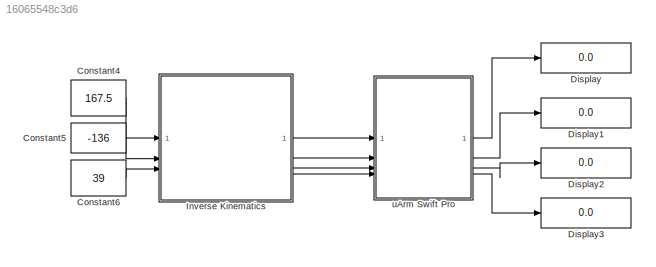
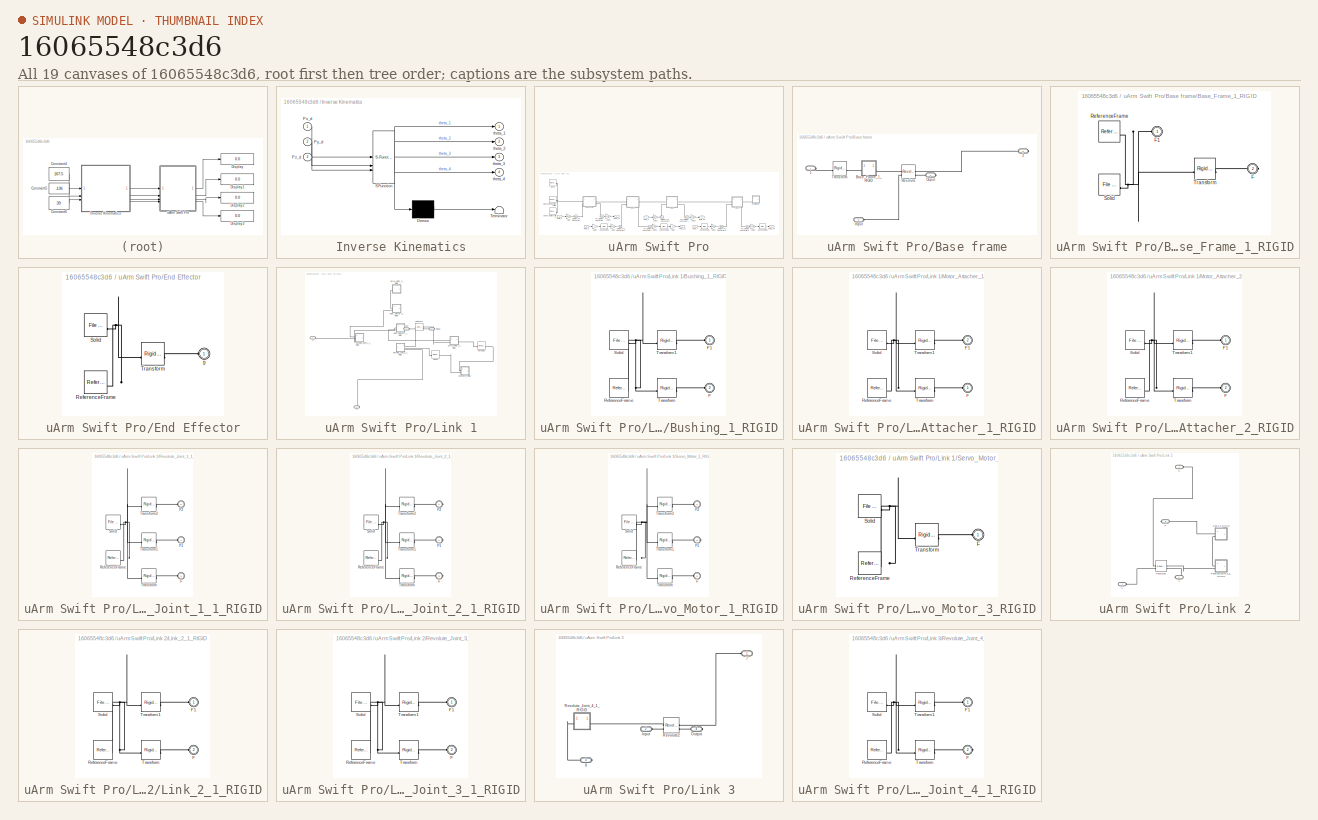
[diagram: thumbnail index - all 19 canvases of the model, root first then tree order]
MODEL slx_16065548c3d6
KIND model
CONFIG AbsTol = auto
CONFIG EnableMultiTasking = off
CONFIG FixedStep = auto
CONFIG MaxStep = auto
CONFIG MinStep = auto
CONFIG RelTol = 1e-3
CONFIG SampleTimeConstraint = Unconstrained
CONFIG SolverName = VariableStepAuto
CONFIG StartTime = 0.0
CONFIG StopTime = 10.0
WORKSPACE source: mxarray member
WORKSPACE smiData: object (value not decoded)
BLOCK [Constant] Constant4
  Value = 167.5
BLOCK [Constant] Constant5
  Value = -136
BLOCK [Constant] Constant6
  Value = 39
BLOCK [Display] Display
  Decimation = 1
BLOCK [Display] Display1
  Decimation = 1
BLOCK [Display] Display2
  Decimation = 1
BLOCK [Display] Display3
  Decimation = 1
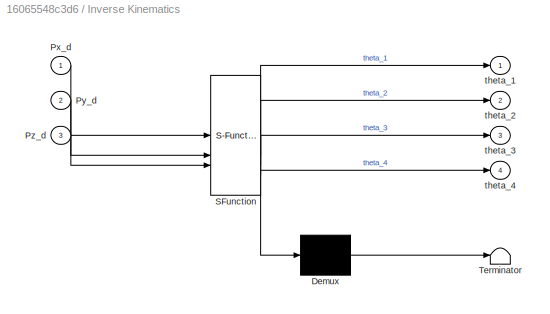
BLOCK [SubSystem] Inverse Kinematics
  ErrorFcn = Stateflow.Translate.translate
  LibrarySourceBlock = simulink/User-Defined\nFunctions/MATLAB Function
  PermitHierarchicalResolution = ExplicitOnly
  SFBlockType = MATLAB Function
  TreatAsAtomicUnit = on
BLOCK [Demux] Inverse Kinematics/ Demux 
  Outputs = 1
BLOCK [S-Function] Inverse Kinematics/ SFunction 
  EnableBusSupport = on
  FunctionName = sf_sfun
  PortCounts = [3 5]
  SFcnIsStateOwnerBlock = off
  SFunctionDeploymentMode = off
  Tag = Stateflow S-Function 1
BLOCK [Terminator] Inverse Kinematics/ Terminator 
BLOCK [Inport] Inverse Kinematics/Px_d
BLOCK [Inport] Inverse Kinematics/Py_d
  Port = 2
BLOCK [Inport] Inverse Kinematics/Pz_d
  Port = 3
BLOCK [Outport] Inverse Kinematics/theta_1
BLOCK [Outport] Inverse Kinematics/theta_2
  Port = 2
BLOCK [Outport] Inverse Kinematics/theta_3
  Port = 3
BLOCK [Outport] Inverse Kinematics/theta_4
  Port = 4
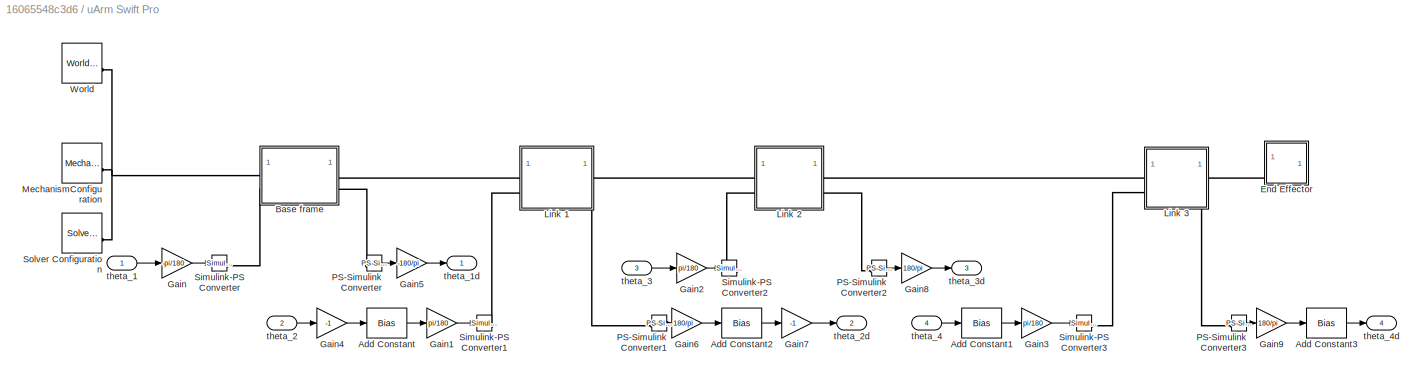
BLOCK [SubSystem] uArm Swift Pro
BLOCK [Bias] uArm Swift Pro/Add Constant
  Bias = 180
  SaturateOnIntegerOverflow = off
BLOCK [Bias] uArm Swift Pro/Add Constant1
  Bias = -90
  SaturateOnIntegerOverflow = off
BLOCK [Bias] uArm Swift Pro/Add Constant2
  Bias = -180
  SaturateOnIntegerOverflow = off
BLOCK [Bias] uArm Swift Pro/Add Constant3
  Bias = +90
  SaturateOnIntegerOverflow = off
BLOCK [SubSystem] uArm Swift Pro/Base frame
BLOCK [PMIOPort] uArm Swift Pro/Base frame/1
  Side = Left
BLOCK [PMIOPort] uArm Swift Pro/Base frame/2
  Port = 3
  Side = Right
BLOCK [SubSystem] uArm Swift Pro/Base frame/Base_Frame_1_RIGID
BLOCK [PMIOPort] uArm Swift Pro/Base frame/Base_Frame_1_RIGID/F
  Port = 2
  Side = Right
BLOCK [PMIOPort] uArm Swift Pro/Base frame/Base_Frame_1_RIGID/F1
  Side = Left
BLOCK [Reference] uArm Swift Pro/Base frame/Base_Frame_1_RIGID/ReferenceFrame  REF=sm_lib/Frames and
Transforms/Reference
Frame
  SourceBlock = sm_lib/Frames and\nTransforms/Reference\nFrame
  SourceType = Reference\nFrame
BLOCK [Reference] uArm Swift Pro/Base frame/Base_Frame_1_RIGID/Solid  REF=sm_lib/Body Elements/File Solid
  SourceBlock = sm_lib/Body Elements/File Solid
  SourceType = File Solid
BLOCK [Reference] uArm Swift Pro/Base frame/Base_Frame_1_RIGID/Transform  REF=sm_lib/Frames and
Transforms/Rigid
Transform
  SourceBlock = sm_lib/Frames and\nTransforms/Rigid\nTransform
  SourceType = Rigid\nTransform
BLOCK [PMIOPort] uArm Swift Pro/Base frame/Input
  Port = 2
  Side = Left
BLOCK [PMIOPort] uArm Swift Pro/Base frame/Ouput
  Port = 4
  Side = Right
BLOCK [Reference] uArm Swift Pro/Base frame/Revolute  REF=sm_lib/Joints/Revolute Joint
  SourceBlock = sm_lib/Joints/Revolute Joint
  SourceType = Revolute Joint
BLOCK [Reference] uArm Swift Pro/Base frame/Transform  REF=sm_lib/Frames and
Transforms/Rigid
Transform
  SourceBlock = sm_lib/Frames and\nTransforms/Rigid\nTransform
  SourceType = Rigid\nTransform
BLOCK [SubSystem] uArm Swift Pro/End Effector
BLOCK [PMIOPort] uArm Swift Pro/End Effector/9
  Side = Left
BLOCK [Reference] uArm Swift Pro/End Effector/ReferenceFrame  REF=sm_lib/Frames and
Transforms/Reference
Frame
  SourceBlock = sm_lib/Frames and\nTransforms/Reference\nFrame
  SourceType = Reference\nFrame
BLOCK [Reference] uArm Swift Pro/End Effector/Solid  REF=sm_lib/Body Elements/File Solid
  SourceBlock = sm_lib/Body Elements/File Solid
  SourceType = File Solid
BLOCK [Reference] uArm Swift Pro/End Effector/Transform  REF=sm_lib/Frames and
Transforms/Rigid
Transform
  SourceBlock = sm_lib/Frames and\nTransforms/Rigid\nTransform
  SourceType = Rigid\nTransform
BLOCK [Gain] uArm Swift Pro/Gain
  Gain = -pi/180
BLOCK [Gain] uArm Swift Pro/Gain1
  Gain = pi/180
BLOCK [Gain] uArm Swift Pro/Gain2
  Gain = pi/180
BLOCK [Gain] uArm Swift Pro/Gain3
  Gain = pi/180
BLOCK [Gain] uArm Swift Pro/Gain4
  Gain = -1
BLOCK [Gain] uArm Swift Pro/Gain5
  Gain = -180/pi
BLOCK [Gain] uArm Swift Pro/Gain6
  Gain = 180/pi
BLOCK [Gain] uArm Swift Pro/Gain7
  Gain = -1
BLOCK [Gain] uArm Swift Pro/Gain8
  Gain = 180/pi
BLOCK [Gain] uArm Swift Pro/Gain9
  Gain = 180/pi
BLOCK [SubSystem] uArm Swift Pro/Link 1
BLOCK [PMIOPort] uArm Swift Pro/Link 1/3
  Side = Left
BLOCK [PMIOPort] uArm Swift Pro/Link 1/4
  Port = 3
  Side = Right
BLOCK [SubSystem] uArm Swift Pro/Link 1/Bushing_1_RIGID
BLOCK [PMIOPort] uArm Swift Pro/Link 1/Bushing_1_RIGID/F
  Port = 2
  Side = Left
BLOCK [PMIOPort] uArm Swift Pro/Link 1/Bushing_1_RIGID/F1
  Side = Left
BLOCK [Reference] uArm Swift Pro/Link 1/Bushing_1_RIGID/ReferenceFrame  REF=sm_lib/Frames and
Transforms/Reference
Frame
  SourceBlock = sm_lib/Frames and\nTransforms/Reference\nFrame
  SourceType = Reference\nFrame
BLOCK [Reference] uArm Swift Pro/Link 1/Bushing_1_RIGID/Solid  REF=sm_lib/Body Elements/File Solid
  SourceBlock = sm_lib/Body Elements/File Solid
  SourceType = File Solid
BLOCK [Reference] uArm Swift Pro/Link 1/Bushing_1_RIGID/Transform  REF=sm_lib/Frames and
Transforms/Rigid
Transform
  SourceBlock = sm_lib/Frames and\nTransforms/Rigid\nTransform
  SourceType = Rigid\nTransform
BLOCK [Reference] uArm Swift Pro/Link 1/Bushing_1_RIGID/Transform1  REF=sm_lib/Frames and
Transforms/Rigid
Transform
  SourceBlock = sm_lib/Frames and\nTransforms/Rigid\nTransform
  SourceType = Rigid\nTransform
BLOCK [Reference] uArm Swift Pro/Link 1/Cylindrical  REF=sm_lib/Joints/Cylindrical
Joint
  SourceBlock = sm_lib/Joints/Cylindrical\nJoint
  SourceType = Cylindrical\nJoint
BLOCK [PMIOPort] uArm Swift Pro/Link 1/Input
  Port = 2
  Side = Left
BLOCK [SubSystem] uArm Swift Pro/Link 1/Motor_Attacher_1_RIGID
BLOCK [PMIOPort] uArm Swift Pro/Link 1/Motor_Attacher_1_RIGID/F
  Side = Left
BLOCK [PMIOPort] uArm Swift Pro/Link 1/Motor_Attacher_1_RIGID/F1
  Port = 2
  Side = Left
BLOCK [Reference] uArm Swift Pro/Link 1/Motor_Attacher_1_RIGID/ReferenceFrame  REF=sm_lib/Frames and
Transforms/Reference
Frame
  SourceBlock = sm_lib/Frames and\nTransforms/Reference\nFrame
  SourceType = Reference\nFrame
BLOCK [Reference] uArm Swift Pro/Link 1/Motor_Attacher_1_RIGID/Solid  REF=sm_lib/Body Elements/File Solid
  SourceBlock = sm_lib/Body Elements/File Solid
  SourceType = File Solid
BLOCK [Reference] uArm Swift Pro/Link 1/Motor_Attacher_1_RIGID/Transform  REF=sm_lib/Frames and
Transforms/Rigid
Transform
  SourceBlock = sm_lib/Frames and\nTransforms/Rigid\nTransform
  SourceType = Rigid\nTransform
BLOCK [Reference] uArm Swift Pro/Link 1/Motor_Attacher_1_RIGID/Transform1  REF=sm_lib/Frames and
Transforms/Rigid
Transform
  SourceBlock = sm_lib/Frames and\nTransforms/Rigid\nTransform
  SourceType = Rigid\nTransform
BLOCK [SubSystem] uArm Swift Pro/Link 1/Motor_Attacher_2_RIGID
BLOCK [PMIOPort] uArm Swift Pro/Link 1/Motor_Attacher_2_RIGID/F
  Port = 2
  Side = Left
BLOCK [PMIOPort] uArm Swift Pro/Link 1/Motor_Attacher_2_RIGID/F1
  Side = Left
BLOCK [Reference] uArm Swift Pro/Link 1/Motor_Attacher_2_RIGID/ReferenceFrame  REF=sm_lib/Frames and
Transforms/Reference
Frame
  SourceBlock = sm_lib/Frames and\nTransforms/Reference\nFrame
  SourceType = Reference\nFrame
BLOCK [Reference] uArm Swift Pro/Link 1/Motor_Attacher_2_RIGID/Solid  REF=sm_lib/Body Elements/File Solid
  SourceBlock = sm_lib/Body Elements/File Solid
  SourceType = File Solid
BLOCK [Reference] uArm Swift Pro/Link 1/Motor_Attacher_2_RIGID/Transform  REF=sm_lib/Frames and
Transforms/Rigid
Transform
  SourceBlock = sm_lib/Frames and\nTransforms/Rigid\nTransform
  SourceType = Rigid\nTransform
BLOCK [Reference] uArm Swift Pro/Link 1/Motor_Attacher_2_RIGID/Transform1  REF=sm_lib/Frames and
Transforms/Rigid
Transform
  SourceBlock = sm_lib/Frames and\nTransforms/Rigid\nTransform
  SourceType = Rigid\nTransform
BLOCK [PMIOPort] uArm Swift Pro/Link 1/Output
  Port = 4
  Side = Right
BLOCK [Reference] uArm Swift Pro/Link 1/Planar  REF=sm_lib/Joints/Planar Joint
  SourceBlock = sm_lib/Joints/Planar Joint
  SourceType = Planar Joint
BLOCK [Reference] uArm Swift Pro/Link 1/Revolute3  REF=sm_lib/Joints/Revolute Joint
  SourceBlock = sm_lib/Joints/Revolute Joint
  SourceType = Revolute Joint
BLOCK [SubSystem] uArm Swift Pro/Link 1/Revolute_Joint_1_1_RIGID
BLOCK [PMIOPort] uArm Swift Pro/Link 1/Revolute_Joint_1_1_RIGID/F
  Port = 3
  Side = Left
BLOCK [PMIOPort] uArm Swift Pro/Link 1/Revolute_Joint_1_1_RIGID/F1
  Side = Left
BLOCK [PMIOPort] uArm Swift Pro/Link 1/Revolute_Joint_1_1_RIGID/F2
  Port = 2
  Side = Left
BLOCK [Reference] uArm Swift Pro/Link 1/Revolute_Joint_1_1_RIGID/ReferenceFrame  REF=sm_lib/Frames and
Transforms/Reference
Frame
  SourceBlock = sm_lib/Frames and\nTransforms/Reference\nFrame
  SourceType = Reference\nFrame
BLOCK [Reference] uArm Swift Pro/Link 1/Revolute_Joint_1_1_RIGID/Solid  REF=sm_lib/Body Elements/File Solid
  SourceBlock = sm_lib/Body Elements/File Solid
  SourceType = File Solid
BLOCK [Reference] uArm Swift Pro/Link 1/Revolute_Joint_1_1_RIGID/Transform  REF=sm_lib/Frames and
Transforms/Rigid
Transform
  SourceBlock = sm_lib/Frames and\nTransforms/Rigid\nTransform
  SourceType = Rigid\nTransform
BLOCK [Reference] uArm Swift Pro/Link 1/Revolute_Joint_1_1_RIGID/Transform1  REF=sm_lib/Frames and
Transforms/Rigid
Transform
  SourceBlock = sm_lib/Frames and\nTransforms/Rigid\nTransform
  SourceType = Rigid\nTransform
BLOCK [Reference] uArm Swift Pro/Link 1/Revolute_Joint_1_1_RIGID/Transform2  REF=sm_lib/Frames and
Transforms/Rigid
Transform
  SourceBlock = sm_lib/Frames and\nTransforms/Rigid\nTransform
  SourceType = Rigid\nTransform
BLOCK [SubSystem] uArm Swift Pro/Link 1/Revolute_Joint_2_1_RIGID
BLOCK [PMIOPort] uArm Swift Pro/Link 1/Revolute_Joint_2_1_RIGID/F
  Port = 3
  Side = Right
BLOCK [PMIOPort] uArm Swift Pro/Link 1/Revolute_Joint_2_1_RIGID/F1
  Port = 2
  Side = Right
BLOCK [PMIOPort] uArm Swift Pro/Link 1/Revolute_Joint_2_1_RIGID/F2
  Side = Right
BLOCK [Reference] uArm Swift Pro/Link 1/Revolute_Joint_2_1_RIGID/ReferenceFrame  REF=sm_lib/Frames and
Transforms/Reference
Frame
  SourceBlock = sm_lib/Frames and\nTransforms/Reference\nFrame
  SourceType = Reference\nFrame
BLOCK [Reference] uArm Swift Pro/Link 1/Revolute_Joint_2_1_RIGID/Solid  REF=sm_lib/Body Elements/File Solid
  SourceBlock = sm_lib/Body Elements/File Solid
  SourceType = File Solid
BLOCK [Reference] uArm Swift Pro/Link 1/Revolute_Joint_2_1_RIGID/Transform  REF=sm_lib/Frames and
Transforms/Rigid
Transform
  SourceBlock = sm_lib/Frames and\nTransforms/Rigid\nTransform
  SourceType = Rigid\nTransform
BLOCK [Reference] uArm Swift Pro/Link 1/Revolute_Joint_2_1_RIGID/Transform1  REF=sm_lib/Frames and
Transforms/Rigid
Transform
  SourceBlock = sm_lib/Frames and\nTransforms/Rigid\nTransform
  SourceType = Rigid\nTransform
BLOCK [Reference] uArm Swift Pro/Link 1/Revolute_Joint_2_1_RIGID/Transform2  REF=sm_lib/Frames and
Transforms/Rigid
Transform
  SourceBlock = sm_lib/Frames and\nTransforms/Rigid\nTransform
  SourceType = Rigid\nTransform
BLOCK [SubSystem] uArm Swift Pro/Link 1/Servo_Motor_1_RIGID
BLOCK [PMIOPort] uArm Swift Pro/Link 1/Servo_Motor_1_RIGID/F
  Port = 2
  Side = Left
BLOCK [PMIOPort] uArm Swift Pro/Link 1/Servo_Motor_1_RIGID/F1
  Port = 3
  Side = Right
BLOCK [PMIOPort] uArm Swift Pro/Link 1/Servo_Motor_1_RIGID/F2
  Side = Left
BLOCK [Reference] uArm Swift Pro/Link 1/Servo_Motor_1_RIGID/ReferenceFrame  REF=sm_lib/Frames and
Transforms/Reference
Frame
  SourceBlock = sm_lib/Frames and\nTransforms/Reference\nFrame
  SourceType = Reference\nFrame
BLOCK [Reference] uArm Swift Pro/Link 1/Servo_Motor_1_RIGID/Solid  REF=sm_lib/Body Elements/File Solid
  SourceBlock = sm_lib/Body Elements/File Solid
  SourceType = File Solid
BLOCK [Reference] uArm Swift Pro/Link 1/Servo_Motor_1_RIGID/Transform  REF=sm_lib/Frames and
Transforms/Rigid
Transform
  SourceBlock = sm_lib/Frames and\nTransforms/Rigid\nTransform
  SourceType = Rigid\nTransform
BLOCK [Reference] uArm Swift Pro/Link 1/Servo_Motor_1_RIGID/Transform1  REF=sm_lib/Frames and
Transforms/Rigid
Transform
  SourceBlock = sm_lib/Frames and\nTransforms/Rigid\nTransform
  SourceType = Rigid\nTransform
BLOCK [Reference] uArm Swift Pro/Link 1/Servo_Motor_1_RIGID/Transform2  REF=sm_lib/Frames and
Transforms/Rigid
Transform
  SourceBlock = sm_lib/Frames and\nTransforms/Rigid\nTransform
  SourceType = Rigid\nTransform
BLOCK [SubSystem] uArm Swift Pro/Link 1/Servo_Motor_3_RIGID
BLOCK [PMIOPort] uArm Swift Pro/Link 1/Servo_Motor_3_RIGID/F
  Side = Left
BLOCK [Reference] uArm Swift Pro/Link 1/Servo_Motor_3_RIGID/ReferenceFrame  REF=sm_lib/Frames and
Transforms/Reference
Frame
  SourceBlock = sm_lib/Frames and\nTransforms/Reference\nFrame
  SourceType = Reference\nFrame
BLOCK [Reference] uArm Swift Pro/Link 1/Servo_Motor_3_RIGID/Solid  REF=sm_lib/Body Elements/File Solid
  SourceBlock = sm_lib/Body Elements/File Solid
  SourceType = File Solid
BLOCK [Reference] uArm Swift Pro/Link 1/Servo_Motor_3_RIGID/Transform  REF=sm_lib/Frames and
Transforms/Rigid
Transform
  SourceBlock = sm_lib/Frames and\nTransforms/Rigid\nTransform
  SourceType = Rigid\nTransform
BLOCK [SubSystem] uArm Swift Pro/Link 2
BLOCK [PMIOPort] uArm Swift Pro/Link 2/1
  Port = 2
  Side = Left
BLOCK [PMIOPort] uArm Swift Pro/Link 2/2
  Port = 4
  Side = Right
BLOCK [PMIOPort] uArm Swift Pro/Link 2/5
  Side = Left
BLOCK [PMIOPort] uArm Swift Pro/Link 2/6
  Port = 3
  Side = Right
BLOCK [SubSystem] uArm Swift Pro/Link 2/Link_2_1_RIGID
BLOCK [PMIOPort] uArm Swift Pro/Link 2/Link_2_1_RIGID/F
  Port = 2
  Side = Left
BLOCK [PMIOPort] uArm Swift Pro/Link 2/Link_2_1_RIGID/F1
  Side = Left
BLOCK [Reference] uArm Swift Pro/Link 2/Link_2_1_RIGID/ReferenceFrame  REF=sm_lib/Frames and
Transforms/Reference
Frame
  SourceBlock = sm_lib/Frames and\nTransforms/Reference\nFrame
  SourceType = Reference\nFrame
BLOCK [Reference] uArm Swift Pro/Link 2/Link_2_1_RIGID/Solid  REF=sm_lib/Body Elements/File Solid
  SourceBlock = sm_lib/Body Elements/File Solid
  SourceType = File Solid
BLOCK [Reference] uArm Swift Pro/Link 2/Link_2_1_RIGID/Transform  REF=sm_lib/Frames and
Transforms/Rigid
Transform
  SourceBlock = sm_lib/Frames and\nTransforms/Rigid\nTransform
  SourceType = Rigid\nTransform
BLOCK [Reference] uArm Swift Pro/Link 2/Link_2_1_RIGID/Transform1  REF=sm_lib/Frames and
Transforms/Rigid
Transform
  SourceBlock = sm_lib/Frames and\nTransforms/Rigid\nTransform
  SourceType = Rigid\nTransform
BLOCK [Reference] uArm Swift Pro/Link 2/Revolute1  REF=sm_lib/Joints/Revolute Joint
  SourceBlock = sm_lib/Joints/Revolute Joint
  SourceType = Revolute Joint
BLOCK [SubSystem] uArm Swift Pro/Link 2/Revolute_Joint_3_1_RIGID
BLOCK [PMIOPort] uArm Swift Pro/Link 2/Revolute_Joint_3_1_RIGID/F
  Port = 2
  Side = Left
BLOCK [PMIOPort] uArm Swift Pro/Link 2/Revolute_Joint_3_1_RIGID/F1
  Side = Left
BLOCK [Reference] uArm Swift Pro/Link 2/Revolute_Joint_3_1_RIGID/ReferenceFrame  REF=sm_lib/Frames and
Transforms/Reference
Frame
  SourceBlock = sm_lib/Frames and\nTransforms/Reference\nFrame
  SourceType = Reference\nFrame
BLOCK [Reference] uArm Swift Pro/Link 2/Revolute_Joint_3_1_RIGID/Solid  REF=sm_lib/Body Elements/File Solid
  SourceBlock = sm_lib/Body Elements/File Solid
  SourceType = File Solid
BLOCK [Reference] uArm Swift Pro/Link 2/Revolute_Joint_3_1_RIGID/Transform  REF=sm_lib/Frames and
Transforms/Rigid
Transform
  SourceBlock = sm_lib/Frames and\nTransforms/Rigid\nTransform
  SourceType = Rigid\nTransform
BLOCK [Reference] uArm Swift Pro/Link 2/Revolute_Joint_3_1_RIGID/Transform1  REF=sm_lib/Frames and
Transforms/Rigid
Transform
  SourceBlock = sm_lib/Frames and\nTransforms/Rigid\nTransform
  SourceType = Rigid\nTransform
BLOCK [SubSystem] uArm Swift Pro/Link 3
BLOCK [PMIOPort] uArm Swift Pro/Link 3/7
  Side = Left
BLOCK [PMIOPort] uArm Swift Pro/Link 3/8
  Port = 3
  Side = Right
BLOCK [PMIOPort] uArm Swift Pro/Link 3/Input
  Port = 2
  Side = Left
BLOCK [PMIOPort] uArm Swift Pro/Link 3/Output
  Port = 4
  Side = Right
BLOCK [Reference] uArm Swift Pro/Link 3/Revolute2  REF=sm_lib/Joints/Revolute Joint
  SourceBlock = sm_lib/Joints/Revolute Joint
  SourceType = Revolute Joint
BLOCK [SubSystem] uArm Swift Pro/Link 3/Revolute_Joint_4_1_RIGID
BLOCK [PMIOPort] uArm Swift Pro/Link 3/Revolute_Joint_4_1_RIGID/F
  Port = 2
  Side = Right
BLOCK [PMIOPort] uArm Swift Pro/Link 3/Revolute_Joint_4_1_RIGID/F1
  Side = Left
BLOCK [Reference] uArm Swift Pro/Link 3/Revolute_Joint_4_1_RIGID/ReferenceFrame  REF=sm_lib/Frames and
Transforms/Reference
Frame
  SourceBlock = sm_lib/Frames and\nTransforms/Reference\nFrame
  SourceType = Reference\nFrame
BLOCK [Reference] uArm Swift Pro/Link 3/Revolute_Joint_4_1_RIGID/Solid  REF=sm_lib/Body Elements/File Solid
  SourceBlock = sm_lib/Body Elements/File Solid
  SourceType = File Solid
BLOCK [Reference] uArm Swift Pro/Link 3/Revolute_Joint_4_1_RIGID/Transform  REF=sm_lib/Frames and
Transforms/Rigid
Transform
  SourceBlock = sm_lib/Frames and\nTransforms/Rigid\nTransform
  SourceType = Rigid\nTransform
BLOCK [Reference] uArm Swift Pro/Link 3/Revolute_Joint_4_1_RIGID/Transform1  REF=sm_lib/Frames and
Transforms/Rigid
Transform
  SourceBlock = sm_lib/Frames and\nTransforms/Rigid\nTransform
  SourceType = Rigid\nTransform
BLOCK [Reference] uArm Swift Pro/MechanismConfiguration  REF=sm_lib/Utilities/Mechanism
Configuration
  SourceBlock = sm_lib/Utilities/Mechanism\nConfiguration
  SourceType = Mechanism\nConfiguration
BLOCK [Reference] uArm Swift Pro/PS-Simulink Converter  REF=nesl_utility/PS-Simulink
Converter
  SourceBlock = nesl_utility/PS-Simulink\nConverter
  SourceType = PS-Simulink\nConverter
BLOCK [Reference] uArm Swift Pro/PS-Simulink Converter1  REF=nesl_utility/PS-Simulink
Converter
  SourceBlock = nesl_utility/PS-Simulink\nConverter
  SourceType = PS-Simulink\nConverter
BLOCK [Reference] uArm Swift Pro/PS-Simulink Converter2  REF=nesl_utility/PS-Simulink
Converter
  SourceBlock = nesl_utility/PS-Simulink\nConverter
  SourceType = PS-Simulink\nConverter
BLOCK [Reference] uArm Swift Pro/PS-Simulink Converter3  REF=nesl_utility/PS-Simulink
Converter
  SourceBlock = nesl_utility/PS-Simulink\nConverter
  SourceType = PS-Simulink\nConverter
BLOCK [Reference] uArm Swift Pro/Simulink-PS Converter  REF=nesl_utility/Simulink-PS
Converter
  SourceBlock = nesl_utility/Simulink-PS\nConverter
  SourceType = Simulink-PS\nConverter
BLOCK [Reference] uArm Swift Pro/Simulink-PS Converter1  REF=nesl_utility/Simulink-PS
Converter
  SourceBlock = nesl_utility/Simulink-PS\nConverter
  SourceType = Simulink-PS\nConverter
BLOCK [Reference] uArm Swift Pro/Simulink-PS Converter2  REF=nesl_utility/Simulink-PS
Converter
  SourceBlock = nesl_utility/Simulink-PS\nConverter
  SourceType = Simulink-PS\nConverter
BLOCK [Reference] uArm Swift Pro/Simulink-PS Converter3  REF=nesl_utility/Simulink-PS
Converter
  SourceBlock = nesl_utility/Simulink-PS\nConverter
  SourceType = Simulink-PS\nConverter
BLOCK [Reference] uArm Swift Pro/Solver Configuration  REF=nesl_utility/Solver
Configuration
  SourceBlock = nesl_utility/Solver\nConfiguration
  SourceType = Solver\nConfiguration
BLOCK [Reference] uArm Swift Pro/World  REF=sm_lib/Frames and
Transforms/World Frame
  SourceBlock = sm_lib/Frames and\nTransforms/World Frame
  SourceType = World Frame
BLOCK [Inport] uArm Swift Pro/theta_1
BLOCK [Outport] uArm Swift Pro/theta_1d
BLOCK [Inport] uArm Swift Pro/theta_2
  Port = 2
BLOCK [Outport] uArm Swift Pro/theta_2d
  Port = 2
BLOCK [Inport] uArm Swift Pro/theta_3
  Port = 3
BLOCK [Outport] uArm Swift Pro/theta_3d
  Port = 3
BLOCK [Inport] uArm Swift Pro/theta_4
  Port = 4
BLOCK [Outport] uArm Swift Pro/theta_4d
  Port = 4
LINE Constant4:1 -> Inverse Kinematics:1
LINE Constant5:1 -> Inverse Kinematics:2
LINE Constant6:1 -> Inverse Kinematics:3
LINE Inverse Kinematics:1 -> uArm Swift Pro:1
LINE Inverse Kinematics:2 -> uArm Swift Pro:2
LINE Inverse Kinematics:3 -> uArm Swift Pro:3
LINE Inverse Kinematics:4 -> uArm Swift Pro:4
LINE uArm Swift Pro/Add Constant1:1 -> uArm Swift Pro/Gain3:1
LINE uArm Swift Pro/Add Constant2:1 -> uArm Swift Pro/Gain7:1
LINE uArm Swift Pro/Add Constant3:1 -> uArm Swift Pro/theta_4d:1
LINE uArm Swift Pro/Add Constant:1 -> uArm Swift Pro/Gain1:1
LINE uArm Swift Pro/Gain1:1 -> uArm Swift Pro/Simulink-PS Converter1:1
LINE uArm Swift Pro/Gain2:1 -> uArm Swift Pro/Simulink-PS Converter2:1
LINE uArm Swift Pro/Gain3:1 -> uArm Swift Pro/Simulink-PS Converter3:1
LINE uArm Swift Pro/Gain4:1 -> uArm Swift Pro/Add Constant:1
LINE uArm Swift Pro/Gain5:1 -> uArm Swift Pro/theta_1d:1
LINE uArm Swift Pro/Gain6:1 -> uArm Swift Pro/Add Constant2:1
LINE uArm Swift Pro/Gain7:1 -> uArm Swift Pro/theta_2d:1
LINE uArm Swift Pro/Gain8:1 -> uArm Swift Pro/theta_3d:1
LINE uArm Swift Pro/Gain9:1 -> uArm Swift Pro/Add Constant3:1
LINE uArm Swift Pro/Gain:1 -> uArm Swift Pro/Simulink-PS Converter:1
LINE uArm Swift Pro/PS-Simulink Converter1:1 -> uArm Swift Pro/Gain6:1
LINE uArm Swift Pro/PS-Simulink Converter2:1 -> uArm Swift Pro/Gain8:1
LINE uArm Swift Pro/PS-Simulink Converter3:1 -> uArm Swift Pro/Gain9:1
LINE uArm Swift Pro/PS-Simulink Converter:1 -> uArm Swift Pro/Gain5:1
LINE uArm Swift Pro/theta_1:1 -> uArm Swift Pro/Gain:1
LINE uArm Swift Pro/theta_2:1 -> uArm Swift Pro/Gain4:1
LINE uArm Swift Pro/theta_3:1 -> uArm Swift Pro/Gain2:1
LINE uArm Swift Pro/theta_4:1 -> uArm Swift Pro/Add Constant1:1
LINE uArm Swift Pro:1 -> Display:1
LINE uArm Swift Pro:2 -> Display1:1
LINE uArm Swift Pro:3 -> Display2:1
LINE uArm Swift Pro:4 -> Display3:1
PLINE uArm Swift Pro/Base frame/1:RConn1 -- uArm Swift Pro/Base frame/Transform:LConn1
PLINE uArm Swift Pro/Base frame/2:RConn1 -- uArm Swift Pro/Base frame/Revolute:RConn1
PNET net1: uArm Swift Pro/Base frame/Base_Frame_1_RIGID/F1:RConn1 -- uArm Swift Pro/Base frame/Base_Frame_1_RIGID/ReferenceFrame:RConn1 -- uArm Swift Pro/Base frame/Base_Frame_1_RIGID/Solid:RConn1 -- uArm Swift Pro/Base frame/Base_Frame_1_RIGID/Transform:LConn1
PLINE uArm Swift Pro/Base frame/Base_Frame_1_RIGID/F:RConn1 -- uArm Swift Pro/Base frame/Base_Frame_1_RIGID/Transform:RConn1
PLINE uArm Swift Pro/Base frame/Base_Frame_1_RIGID:LConn1 -- uArm Swift Pro/Base frame/Transform:RConn1
PLINE uArm Swift Pro/Base frame/Base_Frame_1_RIGID:RConn1 -- uArm Swift Pro/Base frame/Revolute:LConn1
PLINE uArm Swift Pro/Base frame/Input:RConn1 -- uArm Swift Pro/Base frame/Revolute:LConn2
PLINE uArm Swift Pro/Base frame/Ouput:RConn1 -- uArm Swift Pro/Base frame/Revolute:RConn2
PNET net2: uArm Swift Pro/Base frame:LConn1 -- uArm Swift Pro/MechanismConfiguration:RConn1 -- uArm Swift Pro/Solver Configuration:RConn1 -- uArm Swift Pro/World:RConn1
PLINE uArm Swift Pro/Base frame:LConn2 -- uArm Swift Pro/Simulink-PS Converter:RConn1
PLINE uArm Swift Pro/Base frame:RConn1 -- uArm Swift Pro/Link 1:LConn1
PLINE uArm Swift Pro/Base frame:RConn2 -- uArm Swift Pro/PS-Simulink Converter:LConn1
PLINE uArm Swift Pro/End Effector/9:RConn1 -- uArm Swift Pro/End Effector/Transform:RConn1
PNET net3: uArm Swift Pro/End Effector/ReferenceFrame:RConn1 -- uArm Swift Pro/End Effector/Solid:RConn1 -- uArm Swift Pro/End Effector/Transform:LConn1
PLINE uArm Swift Pro/End Effector:LConn1 -- uArm Swift Pro/Link 3:RConn1
PLINE uArm Swift Pro/Link 1/3:RConn1 -- uArm Swift Pro/Link 1/Revolute_Joint_1_1_RIGID:LConn2
PLINE uArm Swift Pro/Link 1/4:RConn1 -- uArm Swift Pro/Link 1/Revolute_Joint_2_1_RIGID:RConn3
PLINE uArm Swift Pro/Link 1/Bushing_1_RIGID/F1:RConn1 -- uArm Swift Pro/Link 1/Bushing_1_RIGID/Transform1:RConn1
PLINE uArm Swift Pro/Link 1/Bushing_1_RIGID/F:RConn1 -- uArm Swift Pro/Link 1/Bushing_1_RIGID/Transform:RConn1
PNET net4: uArm Swift Pro/Link 1/Bushing_1_RIGID/ReferenceFrame:RConn1 -- uArm Swift Pro/Link 1/Bushing_1_RIGID/Solid:RConn1 -- uArm Swift Pro/Link 1/Bushing_1_RIGID/Transform1:LConn1 -- uArm Swift Pro/Link 1/Bushing_1_RIGID/Transform:LConn1
PLINE uArm Swift Pro/Link 1/Bushing_1_RIGID:LConn1 -- uArm Swift Pro/Link 1/Revolute3:RConn1
PLINE uArm Swift Pro/Link 1/Bushing_1_RIGID:LConn2 -- uArm Swift Pro/Link 1/Planar:RConn1
PLINE uArm Swift Pro/Link 1/Cylindrical:LConn1 -- uArm Swift Pro/Link 1/Revolute_Joint_2_1_RIGID:RConn1
PLINE uArm Swift Pro/Link 1/Cylindrical:LConn2 -- uArm Swift Pro/Link 1/Input:RConn1
PLINE uArm Swift Pro/Link 1/Cylindrical:RConn1 -- uArm Swift Pro/Link 1/Servo_Motor_1_RIGID:LConn2
PLINE uArm Swift Pro/Link 1/Cylindrical:RConn2 -- uArm Swift Pro/Link 1/Output:RConn1
PLINE uArm Swift Pro/Link 1/Motor_Attacher_1_RIGID/F1:RConn1 -- uArm Swift Pro/Link 1/Motor_Attacher_1_RIGID/Transform1:RConn1
PLINE uArm Swift Pro/Link 1/Motor_Attacher_1_RIGID/F:RConn1 -- uArm Swift Pro/Link 1/Motor_Attacher_1_RIGID/Transform:RConn1
PNET net5: uArm Swift Pro/Link 1/Motor_Attacher_1_RIGID/ReferenceFrame:RConn1 -- uArm Swift Pro/Link 1/Motor_Attacher_1_RIGID/Solid:RConn1 -- uArm Swift Pro/Link 1/Motor_Attacher_1_RIGID/Transform1:LConn1 -- uArm Swift Pro/Link 1/Motor_Attacher_1_RIGID/Transform:LConn1
PLINE uArm Swift Pro/Link 1/Motor_Attacher_1_RIGID:LConn1 -- uArm Swift Pro/Link 1/Revolute_Joint_1_1_RIGID:LConn3
PLINE uArm Swift Pro/Link 1/Motor_Attacher_1_RIGID:LConn2 -- uArm Swift Pro/Link 1/Servo_Motor_1_RIGID:LConn1
PLINE uArm Swift Pro/Link 1/Motor_Attacher_2_RIGID/F1:RConn1 -- uArm Swift Pro/Link 1/Motor_Attacher_2_RIGID/Transform1:RConn1
PLINE uArm Swift Pro/Link 1/Motor_Attacher_2_RIGID/F:RConn1 -- uArm Swift Pro/Link 1/Motor_Attacher_2_RIGID/Transform:RConn1
PNET net6: uArm Swift Pro/Link 1/Motor_Attacher_2_RIGID/ReferenceFrame:RConn1 -- uArm Swift Pro/Link 1/Motor_Attacher_2_RIGID/Solid:RConn1 -- uArm Swift Pro/Link 1/Motor_Attacher_2_RIGID/Transform1:LConn1 -- uArm Swift Pro/Link 1/Motor_Attacher_2_RIGID/Transform:LConn1
PLINE uArm Swift Pro/Link 1/Motor_Attacher_2_RIGID:LConn1 -- uArm Swift Pro/Link 1/Servo_Motor_3_RIGID:LConn1
PLINE uArm Swift Pro/Link 1/Motor_Attacher_2_RIGID:LConn2 -- uArm Swift Pro/Link 1/Revolute_Joint_1_1_RIGID:LConn1
PLINE uArm Swift Pro/Link 1/Planar:LConn1 -- uArm Swift Pro/Link 1/Revolute_Joint_2_1_RIGID:RConn2
PLINE uArm Swift Pro/Link 1/Revolute3:LConn1 -- uArm Swift Pro/Link 1/Servo_Motor_1_RIGID:RConn1
PLINE uArm Swift Pro/Link 1/Revolute_Joint_1_1_RIGID/F1:RConn1 -- uArm Swift Pro/Link 1/Revolute_Joint_1_1_RIGID/Transform1:RConn1
PLINE uArm Swift Pro/Link 1/Revolute_Joint_1_1_RIGID/F2:RConn1 -- uArm Swift Pro/Link 1/Revolute_Joint_1_1_RIGID/Transform2:RConn1
PLINE uArm Swift Pro/Link 1/Revolute_Joint_1_1_RIGID/F:RConn1 -- uArm Swift Pro/Link 1/Revolute_Joint_1_1_RIGID/Transform:RConn1
PNET net7: uArm Swift Pro/Link 1/Revolute_Joint_1_1_RIGID/ReferenceFrame:RConn1 -- uArm Swift Pro/Link 1/Revolute_Joint_1_1_RIGID/Solid:RConn1 -- uArm Swift Pro/Link 1/Revolute_Joint_1_1_RIGID/Transform1:LConn1 -- uArm Swift Pro/Link 1/Revolute_Joint_1_1_RIGID/Transform2:LConn1 -- uArm Swift Pro/Link 1/Revolute_Joint_1_1_RIGID/Transform:LConn1
PLINE uArm Swift Pro/Link 1/Revolute_Joint_2_1_RIGID/F1:RConn1 -- uArm Swift Pro/Link 1/Revolute_Joint_2_1_RIGID/Transform1:RConn1
PLINE uArm Swift Pro/Link 1/Revolute_Joint_2_1_RIGID/F2:RConn1 -- uArm Swift Pro/Link 1/Revolute_Joint_2_1_RIGID/Transform2:RConn1
PLINE uArm Swift Pro/Link 1/Revolute_Joint_2_1_RIGID/F:RConn1 -- uArm Swift Pro/Link 1/Revolute_Joint_2_1_RIGID/Transform:RConn1
PNET net8: uArm Swift Pro/Link 1/Revolute_Joint_2_1_RIGID/ReferenceFrame:RConn1 -- uArm Swift Pro/Link 1/Revolute_Joint_2_1_RIGID/Solid:RConn1 -- uArm Swift Pro/Link 1/Revolute_Joint_2_1_RIGID/Transform1:LConn1 -- uArm Swift Pro/Link 1/Revolute_Joint_2_1_RIGID/Transform2:LConn1 -- uArm Swift Pro/Link 1/Revolute_Joint_2_1_RIGID/Transform:LConn1
PLINE uArm Swift Pro/Link 1/Servo_Motor_1_RIGID/F1:RConn1 -- uArm Swift Pro/Link 1/Servo_Motor_1_RIGID/Transform1:RConn1
PLINE uArm Swift Pro/Link 1/Servo_Motor_1_RIGID/F2:RConn1 -- uArm Swift Pro/Link 1/Servo_Motor_1_RIGID/Transform2:RConn1
PLINE uArm Swift Pro/Link 1/Servo_Motor_1_RIGID/F:RConn1 -- uArm Swift Pro/Link 1/Servo_Motor_1_RIGID/Transform:RConn1
PNET net9: uArm Swift Pro/Link 1/Servo_Motor_1_RIGID/ReferenceFrame:RConn1 -- uArm Swift Pro/Link 1/Servo_Motor_1_RIGID/Solid:RConn1 -- uArm Swift Pro/Link 1/Servo_Motor_1_RIGID/Transform1:LConn1 -- uArm Swift Pro/Link 1/Servo_Motor_1_RIGID/Transform2:LConn1 -- uArm Swift Pro/Link 1/Servo_Motor_1_RIGID/Transform:LConn1
PLINE uArm Swift Pro/Link 1/Servo_Motor_3_RIGID/F:RConn1 -- uArm Swift Pro/Link 1/Servo_Motor_3_RIGID/Transform:RConn1
PNET net10: uArm Swift Pro/Link 1/Servo_Motor_3_RIGID/ReferenceFrame:RConn1 -- uArm Swift Pro/Link 1/Servo_Motor_3_RIGID/Solid:RConn1 -- uArm Swift Pro/Link 1/Servo_Motor_3_RIGID/Transform:LConn1
PLINE uArm Swift Pro/Link 1:LConn2 -- uArm Swift Pro/Simulink-PS Converter1:RConn1
PLINE uArm Swift Pro/Link 1:RConn1 -- uArm Swift Pro/Link 2:LConn1
PLINE uArm Swift Pro/Link 1:RConn2 -- uArm Swift Pro/PS-Simulink Converter1:LConn1
PLINE uArm Swift Pro/Link 2/1:RConn1 -- uArm Swift Pro/Link 2/Revolute1:LConn2
PLINE uArm Swift Pro/Link 2/2:RConn1 -- uArm Swift Pro/Link 2/Revolute1:RConn2
PLINE uArm Swift Pro/Link 2/5:RConn1 -- uArm Swift Pro/Link 2/Revolute1:LConn1
PLINE uArm Swift Pro/Link 2/6:RConn1 -- uArm Swift Pro/Link 2/Link_2_1_RIGID:LConn1
PLINE uArm Swift Pro/Link 2/Link_2_1_RIGID/F1:RConn1 -- uArm Swift Pro/Link 2/Link_2_1_RIGID/Transform1:RConn1
PLINE uArm Swift Pro/Link 2/Link_2_1_RIGID/F:RConn1 -- uArm Swift Pro/Link 2/Link_2_1_RIGID/Transform:RConn1
PNET net11: uArm Swift Pro/Link 2/Link_2_1_RIGID/ReferenceFrame:RConn1 -- uArm Swift Pro/Link 2/Link_2_1_RIGID/Solid:RConn1 -- uArm Swift Pro/Link 2/Link_2_1_RIGID/Transform1:LConn1 -- uArm Swift Pro/Link 2/Link_2_1_RIGID/Transform:LConn1
PLINE uArm Swift Pro/Link 2/Link_2_1_RIGID:LConn2 -- uArm Swift Pro/Link 2/Revolute_Joint_3_1_RIGID:LConn1
PLINE uArm Swift Pro/Link 2/Revolute1:RConn1 -- uArm Swift Pro/Link 2/Revolute_Joint_3_1_RIGID:LConn2
PLINE uArm Swift Pro/Link 2/Revolute_Joint_3_1_RIGID/F1:RConn1 -- uArm Swift Pro/Link 2/Revolute_Joint_3_1_RIGID/Transform1:RConn1
PLINE uArm Swift Pro/Link 2/Revolute_Joint_3_1_RIGID/F:RConn1 -- uArm Swift Pro/Link 2/Revolute_Joint_3_1_RIGID/Transform:RConn1
PNET net12: uArm Swift Pro/Link 2/Revolute_Joint_3_1_RIGID/ReferenceFrame:RConn1 -- uArm Swift Pro/Link 2/Revolute_Joint_3_1_RIGID/Solid:RConn1 -- uArm Swift Pro/Link 2/Revolute_Joint_3_1_RIGID/Transform1:LConn1 -- uArm Swift Pro/Link 2/Revolute_Joint_3_1_RIGID/Transform:LConn1
PLINE uArm Swift Pro/Link 2:LConn2 -- uArm Swift Pro/Simulink-PS Converter2:RConn1
PLINE uArm Swift Pro/Link 2:RConn1 -- uArm Swift Pro/Link 3:LConn1
PLINE uArm Swift Pro/Link 2:RConn2 -- uArm Swift Pro/PS-Simulink Converter2:LConn1
PLINE uArm Swift Pro/Link 3/7:RConn1 -- uArm Swift Pro/Link 3/Revolute2:RConn1
PLINE uArm Swift Pro/Link 3/8:RConn1 -- uArm Swift Pro/Link 3/Revolute_Joint_4_1_RIGID:LConn1
PLINE uArm Swift Pro/Link 3/Input:RConn1 -- uArm Swift Pro/Link 3/Revolute2:LConn2
PLINE uArm Swift Pro/Link 3/Output:RConn1 -- uArm Swift Pro/Link 3/Revolute2:RConn2
PLINE uArm Swift Pro/Link 3/Revolute2:LConn1 -- uArm Swift Pro/Link 3/Revolute_Joint_4_1_RIGID:RConn1
PLINE uArm Swift Pro/Link 3/Revolute_Joint_4_1_RIGID/F1:RConn1 -- uArm Swift Pro/Link 3/Revolute_Joint_4_1_RIGID/Transform1:RConn1
PLINE uArm Swift Pro/Link 3/Revolute_Joint_4_1_RIGID/F:RConn1 -- uArm Swift Pro/Link 3/Revolute_Joint_4_1_RIGID/Transform:RConn1
PNET net13: uArm Swift Pro/Link 3/Revolute_Joint_4_1_RIGID/ReferenceFrame:RConn1 -- uArm Swift Pro/Link 3/Revolute_Joint_4_1_RIGID/Solid:RConn1 -- uArm Swift Pro/Link 3/Revolute_Joint_4_1_RIGID/Transform1:LConn1 -- uArm Swift Pro/Link 3/Revolute_Joint_4_1_RIGID/Transform:LConn1
PLINE uArm Swift Pro/Link 3:LConn2 -- uArm Swift Pro/Simulink-PS Converter3:RConn1
PLINE uArm Swift Pro/Link 3:RConn2 -- uArm Swift Pro/PS-Simulink Converter3:LConn1
note: PNET lines group multi-terminal physical nets as a canonical sorted terminal list (undirected conserving connections); 2-terminal nets keep the pairwise PLINE form
CHART Inverse Kinematics states=1 transitions=1
  STATE_LABEL 'eML_blk_kernel()'
  STATE_LABEL 'SCRIPT:\n%Function for inverse kinematics for uArm Swift Pro \n\nfunction [theta_1, theta_2, theta_3, theta_4] = i(Px_d, Py_d, Pz_d)\n\n%Constants\na_1 = 13.2; a_2 = 142; a_3 = 158.8; a_4 = 44.5;      %Link lengths\nd_1 = 106.1;                                         %Link offsets\n\ntheta_1 = atan2d(Py_d,Px_d);\n\nr = sqrt(Px_d^2 + Py_d^2);\n\ns = r - a_1 - a_4;\n\nh = Pz_d - d_1;\n\nl = sqrt(s^2 + h^2);\n\nif s==...<+275ch>'
CHART  states=0 transitions=0
